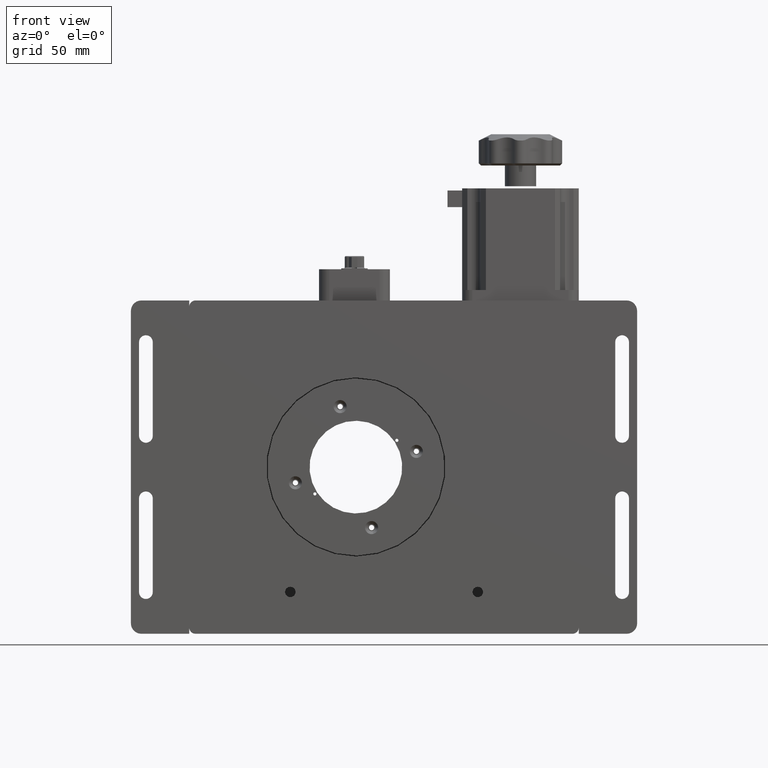
[diagram: clean part render]
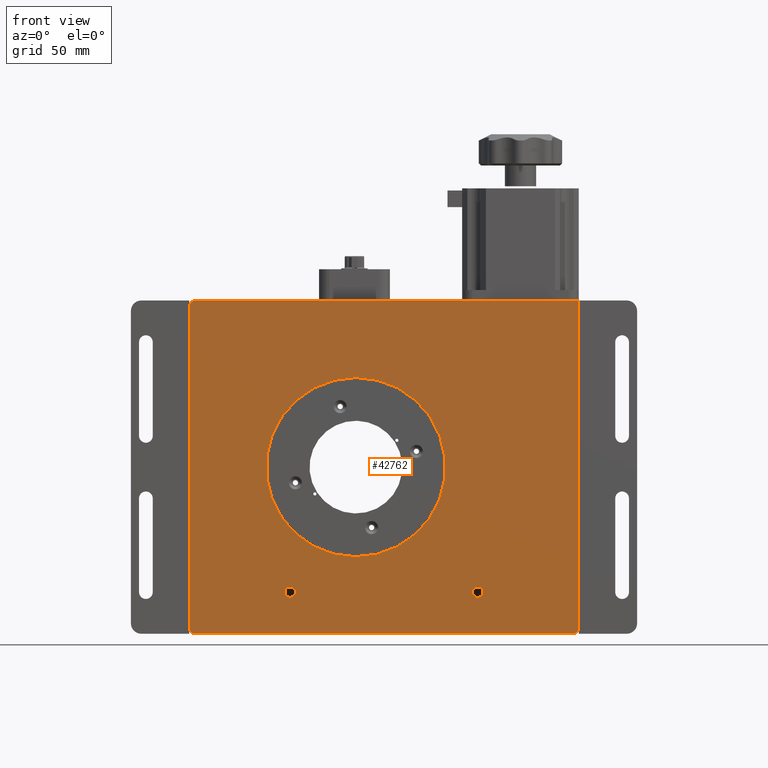
[diagram: same view with one face highlighted and labeled with its STEP entity id]
A machine part, front view. The second image highlights one B-rep face of the part: STEP entity #42762.
In plain terms, the highlighted planar face has unit normal (-0, 1, 0).
Its self-contained STEP definition (entity closure, byte-faithful):
#2227 = ORIENTED_EDGE ( 'NONE', *, *, #9513, .F. ) ;
#2268 = DIRECTION ( 'NONE',  ( 1.782934639968039900E-017, 1.000000000000000000, 1.930919798284918700E-017 ) ) ;
#4323 = ORIENTED_EDGE ( 'NONE', *, *, #77270, .T. ) ;
#6873 = VERTEX_POINT ( 'NONE', #44486 ) ;
#8349 = DIRECTION ( 'NONE',  ( 1.000000000000000000, 1.120429993953745500E-016, -5.551115123125781500E-017 ) ) ;
#9513 = EDGE_CURVE ( 'NONE', #22027, #6873, #45282, .T. ) ;
#10413 = CARTESIAN_POINT ( 'NONE',  ( 93.49999999999990100, -7.500000000000015100, 77.00000000000001400 ) ) ;
#10581 = CARTESIAN_POINT ( 'NONE',  ( 280.5000000000000000, -7.499999999999987600, 80.00000000000002800 ) ) ;
#12248 = ORIENTED_EDGE ( 'NONE', *, *, #76359, .T. ) ;
#12907 = ORIENTED_EDGE ( 'NONE', *, *, #64572, .T. ) ;
#13945 = VERTEX_POINT ( 'NONE', #97964 ) ;
#14555 = AXIS2_PLACEMENT_3D ( 'NONE', #51528, #2268, #59840 ) ;
#15177 = CARTESIAN_POINT ( 'NONE',  ( 231.9999999999999400, -7.499999999999998200, -62.50000000000005700 ) ) ;
#15374 = AXIS2_PLACEMENT_3D ( 'NONE', #25899, #83495, #34162 ) ;
#16483 = LINE ( 'NONE', #95610, #79619 ) ;
#16736 = CARTESIAN_POINT ( 'NONE',  ( 96.49999999999991500, -7.500000000000011500, 77.00000000000001400 ) ) ;
#16949 = CARTESIAN_POINT ( 'NONE',  ( 93.49999999999990100, -7.500000000000018700, -80.00000000000007100 ) ) ;
#17722 = CARTESIAN_POINT ( 'NONE',  ( 96.49999999999991500, -7.500000000000015100, 80.00000000000001400 ) ) ;
#18180 = FACE_BOUND ( 'NONE', #39446, .T. ) ;
#18666 = EDGE_LOOP ( 'NONE', ( #57218, #4323, #12907, #49786, #12248, #23285, #57373 ) ) ;
#20168 = AXIS2_PLACEMENT_3D ( 'NONE', #47429, #105032, #55692 ) ;
#20937 = ORIENTED_EDGE ( 'NONE', *, *, #27478, .F. ) ;
#22027 = VERTEX_POINT ( 'NONE', #15177 ) ;
#23285 = ORIENTED_EDGE ( 'NONE', *, *, #103996, .T. ) ;
#25083 = DIRECTION ( 'NONE',  ( -1.000000000000000000, 0.0000000000000000000, 0.0000000000000000000 ) ) ;
#25899 = CARTESIAN_POINT ( 'NONE',  ( 277.5000000000000000, -7.499999999999991100, -77.00000000000005700 ) ) ;
#26930 = AXIS2_PLACEMENT_3D ( 'NONE', #16736, #74387, #25083 ) ;
#27478 = EDGE_CURVE ( 'NONE', #13945, #52836, #43956, .T. ) ;
#30159 = EDGE_CURVE ( 'NONE', #52836, #13945, #106218, .T. ) ;
#33158 = CARTESIAN_POINT ( 'NONE',  ( 231.9999999999999400, -7.499999999999998200, -60.00000000000005000 ) ) ;
#33502 = VECTOR ( 'NONE', #52436, 1000.000000000000000 ) ;
#34162 = DIRECTION ( 'NONE',  ( -1.000000000000000000, 0.0000000000000000000, 0.0000000000000000000 ) ) ;
#35258 = CIRCLE ( 'NONE', #26930, 3.000000000000002700 ) ;
#37317 = CARTESIAN_POINT ( 'NONE',  ( 280.5000000000000000, -7.499999999999991100, -77.00000000000005700 ) ) ;
#37507 = ORIENTED_EDGE ( 'NONE', *, *, #93084, .T. ) ;
#37510 = FACE_BOUND ( 'NONE', #46428, .T. ) ;
#38496 = EDGE_LOOP ( 'NONE', ( #44307, #37507 ) ) ;
#38723 = DIRECTION ( 'NONE',  ( -1.782934639968039900E-017, -1.000000000000000000, -1.930919798284918700E-017 ) ) ;
#39338 = CARTESIAN_POINT ( 'NONE',  ( 93.49999999999990100, -7.500000000000015100, 80.00000000000001400 ) ) ;
#39446 = EDGE_LOOP ( 'NONE', ( #85457, #20937 ) ) ;
#39777 = VERTEX_POINT ( 'NONE', #97523 ) ;
#41098 = LINE ( 'NONE', #39338, #43650 ) ;
#41463 = DIRECTION ( 'NONE',  ( 0.0000000000000000000, 0.0000000000000000000, 1.000000000000000000 ) ) ;
#42550 = CARTESIAN_POINT ( 'NONE',  ( 231.9999999999999400, -7.499999999999998200, -60.00000000000005000 ) ) ;
#42762 = ADVANCED_FACE ( 'NONE', ( #18180, #37510, #81355, #100655 ), #63639, .F. ) ;
#43650 = VECTOR ( 'NONE', #88667, 1000.000000000000000 ) ;
#43956 = CIRCLE ( 'NONE', #56326, 2.500000000000002200 ) ;
#44192 = CARTESIAN_POINT ( 'NONE',  ( 93.49999999999990100, -7.500000000000015100, 80.00000000000001400 ) ) ;
#44307 = ORIENTED_EDGE ( 'NONE', *, *, #84773, .T. ) ;
#44486 = CARTESIAN_POINT ( 'NONE',  ( 231.9999999999999400, -7.499999999999998200, -57.50000000000004300 ) ) ;
#44914 = CIRCLE ( 'NONE', #14555, 43.00000000000003600 ) ;
#45016 = CARTESIAN_POINT ( 'NONE',  ( 173.4999999999999400, -7.500000000000015100, -1.353388042383231000E-014 ) ) ;
#45282 = CIRCLE ( 'NONE', #101739, 2.500000000000002200 ) ;
#45661 = DIRECTION ( 'NONE',  ( 1.120429993953747700E-016, -1.000000000000000000, -1.930919798284919300E-017 ) ) ;
#46201 = DIRECTION ( 'NONE',  ( -1.782934639968039900E-017, -1.000000000000000000, -1.930919798284918700E-017 ) ) ;
#46428 = EDGE_LOOP ( 'NONE', ( #63938, #2227 ) ) ;
#47429 = CARTESIAN_POINT ( 'NONE',  ( 93.49999999999990100, -7.500000000000015100, 80.00000000000001400 ) ) ;
#47919 = AXIS2_PLACEMENT_3D ( 'NONE', #94957, #45661, #103241 ) ;
#49786 = ORIENTED_EDGE ( 'NONE', *, *, #85566, .T. ) ;
#49852 = CARTESIAN_POINT ( 'NONE',  ( 141.9999999999999400, -7.500000000000008000, -57.50000000000005000 ) ) ;
#50782 = DIRECTION ( 'NONE',  ( 0.0000000000000000000, 0.0000000000000000000, 1.000000000000000000 ) ) ;
#51478 = VERTEX_POINT ( 'NONE', #17722 ) ;
#51528 = CARTESIAN_POINT ( 'NONE',  ( 173.4999999999999400, -7.500000000000015100, -1.353388042383231000E-014 ) ) ;
#52436 = DIRECTION ( 'NONE',  ( -5.551115123125781500E-017, 1.930919798284917800E-017, -1.000000000000000000 ) ) ;
#52836 = VERTEX_POINT ( 'NONE', #49852 ) ;
#53273 = DIRECTION ( 'NONE',  ( 0.0000000000000000000, 2.017120320903262400E-017, -1.000000000000000000 ) ) ;
#54149 = LINE ( 'NONE', #16949, #98004 ) ;
#55692 = DIRECTION ( 'NONE',  ( -1.000000000000000000, -1.120429993953745500E-016, 5.551115123125781500E-017 ) ) ;
#55714 = EDGE_CURVE ( 'NONE', #6873, #22027, #92706, .T. ) ;
#56326 = AXIS2_PLACEMENT_3D ( 'NONE', #95490, #46201, #103788 ) ;
#57218 = ORIENTED_EDGE ( 'NONE', *, *, #65644, .F. ) ;
#57373 = ORIENTED_EDGE ( 'NONE', *, *, #58263, .F. ) ;
#58214 = VERTEX_POINT ( 'NONE', #37317 ) ;
#58263 = EDGE_CURVE ( 'NONE', #105799, #58214, #16483, .T. ) ;
#58907 = CARTESIAN_POINT ( 'NONE',  ( 277.5000000000000000, -7.499999999999991100, -80.00000000000005700 ) ) ;
#59071 = AXIS2_PLACEMENT_3D ( 'NONE', #33158, #90801, #41463 ) ;
#59840 = DIRECTION ( 'NONE',  ( 0.0000000000000000000, 2.017120320903262400E-017, -1.000000000000000000 ) ) ;
#61567 = VERTEX_POINT ( 'NONE', #58907 ) ;
#63639 = PLANE ( 'NONE',  #20168 ) ;
#63938 = ORIENTED_EDGE ( 'NONE', *, *, #55714, .F. ) ;
#64572 = EDGE_CURVE ( 'NONE', #75102, #39777, #99230, .T. ) ;
#64663 = CIRCLE ( 'NONE', #47919, 3.000000000000002700 ) ;
#65644 = EDGE_CURVE ( 'NONE', #51478, #105799, #41098, .T. ) ;
#70241 = CARTESIAN_POINT ( 'NONE',  ( 173.4999999999999400, -7.500000000000014200, -43.00000000000005000 ) ) ;
#70942 = CARTESIAN_POINT ( 'NONE',  ( 96.49999999999991500, -7.500000000000018700, -80.00000000000007100 ) ) ;
#71441 = CARTESIAN_POINT ( 'NONE',  ( 173.4999999999999400, -7.500000000000016000, 43.00000000000000000 ) ) ;
#72489 = CIRCLE ( 'NONE', #105804, 43.00000000000003600 ) ;
#74387 = DIRECTION ( 'NONE',  ( 1.120429993953747700E-016, -1.000000000000000000, -1.930919798284919300E-017 ) ) ;
#75102 = VERTEX_POINT ( 'NONE', #10413 ) ;
#76359 = EDGE_CURVE ( 'NONE', #80634, #61567, #54149, .T. ) ;
#77270 = EDGE_CURVE ( 'NONE', #51478, #75102, #35258, .T. ) ;
#77479 = VERTEX_POINT ( 'NONE', #71441 ) ;
#79619 = VECTOR ( 'NONE', #96339, 1000.000000000000000 ) ;
#80634 = VERTEX_POINT ( 'NONE', #70942 ) ;
#81355 = FACE_BOUND ( 'NONE', #38496, .T. ) ;
#83495 = DIRECTION ( 'NONE',  ( 1.120429993953747700E-016, -1.000000000000000000, -1.930919798284919300E-017 ) ) ;
#84773 = EDGE_CURVE ( 'NONE', #102515, #77479, #72489, .T. ) ;
#85457 = ORIENTED_EDGE ( 'NONE', *, *, #30159, .F. ) ;
#85566 = EDGE_CURVE ( 'NONE', #39777, #80634, #64663, .T. ) ;
#88087 = CARTESIAN_POINT ( 'NONE',  ( 141.9999999999999400, -7.500000000000008000, -60.00000000000005700 ) ) ;
#88667 = DIRECTION ( 'NONE',  ( 1.000000000000000000, 1.120429993953745500E-016, -5.551115123125781500E-017 ) ) ;
#90374 = CIRCLE ( 'NONE', #15374, 3.000000000000002700 ) ;
#90801 = DIRECTION ( 'NONE',  ( -1.782934639968039900E-017, -1.000000000000000000, -1.930919798284918700E-017 ) ) ;
#92706 = CIRCLE ( 'NONE', #59071, 2.500000000000002200 ) ;
#93084 = EDGE_CURVE ( 'NONE', #77479, #102515, #44914, .T. ) ;
#94529 = AXIS2_PLACEMENT_3D ( 'NONE', #88087, #38723, #96311 ) ;
#94957 = CARTESIAN_POINT ( 'NONE',  ( 96.49999999999991500, -7.500000000000018700, -77.00000000000007100 ) ) ;
#95490 = CARTESIAN_POINT ( 'NONE',  ( 141.9999999999999400, -7.500000000000008000, -60.00000000000005700 ) ) ;
#95610 = CARTESIAN_POINT ( 'NONE',  ( 280.5000000000000000, -7.499999999999987600, 80.00000000000002800 ) ) ;
#96311 = DIRECTION ( 'NONE',  ( 0.0000000000000000000, 0.0000000000000000000, 1.000000000000000000 ) ) ;
#96339 = DIRECTION ( 'NONE',  ( -5.551115123125781500E-017, 1.930919798284917800E-017, -1.000000000000000000 ) ) ;
#97523 = CARTESIAN_POINT ( 'NONE',  ( 93.49999999999990100, -7.500000000000018700, -77.00000000000007100 ) ) ;
#97964 = CARTESIAN_POINT ( 'NONE',  ( 141.9999999999999400, -7.500000000000008000, -62.50000000000005700 ) ) ;
#98004 = VECTOR ( 'NONE', #8349, 1000.000000000000000 ) ;
#99230 = LINE ( 'NONE', #44192, #33502 ) ;
#100146 = DIRECTION ( 'NONE',  ( -1.782934639968039900E-017, -1.000000000000000000, -1.930919798284918700E-017 ) ) ;
#100655 = FACE_OUTER_BOUND ( 'NONE', #18666, .T. ) ;
#101739 = AXIS2_PLACEMENT_3D ( 'NONE', #42550, #100146, #50782 ) ;
#102515 = VERTEX_POINT ( 'NONE', #70241 ) ;
#102606 = DIRECTION ( 'NONE',  ( 1.782934639968039900E-017, 1.000000000000000000, 1.930919798284918700E-017 ) ) ;
#103241 = DIRECTION ( 'NONE',  ( -1.000000000000000000, 0.0000000000000000000, 0.0000000000000000000 ) ) ;
#103788 = DIRECTION ( 'NONE',  ( 0.0000000000000000000, 0.0000000000000000000, 1.000000000000000000 ) ) ;
#103996 = EDGE_CURVE ( 'NONE', #61567, #58214, #90374, .T. ) ;
#105032 = DIRECTION ( 'NONE',  ( -1.120429993953745500E-016, 1.000000000000000000, 1.930919798284919300E-017 ) ) ;
#105799 = VERTEX_POINT ( 'NONE', #10581 ) ;
#105804 = AXIS2_PLACEMENT_3D ( 'NONE', #45016, #102606, #53273 ) ;
#106218 = CIRCLE ( 'NONE', #94529, 2.500000000000002200 ) ;